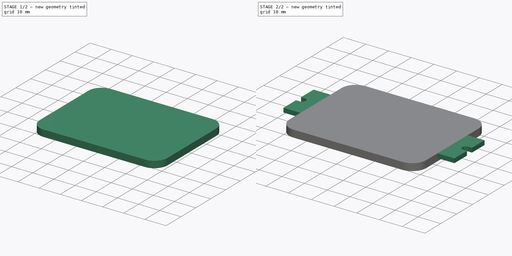
[diagram: build sequence overview — one tinted view per stage of 2, left to right]
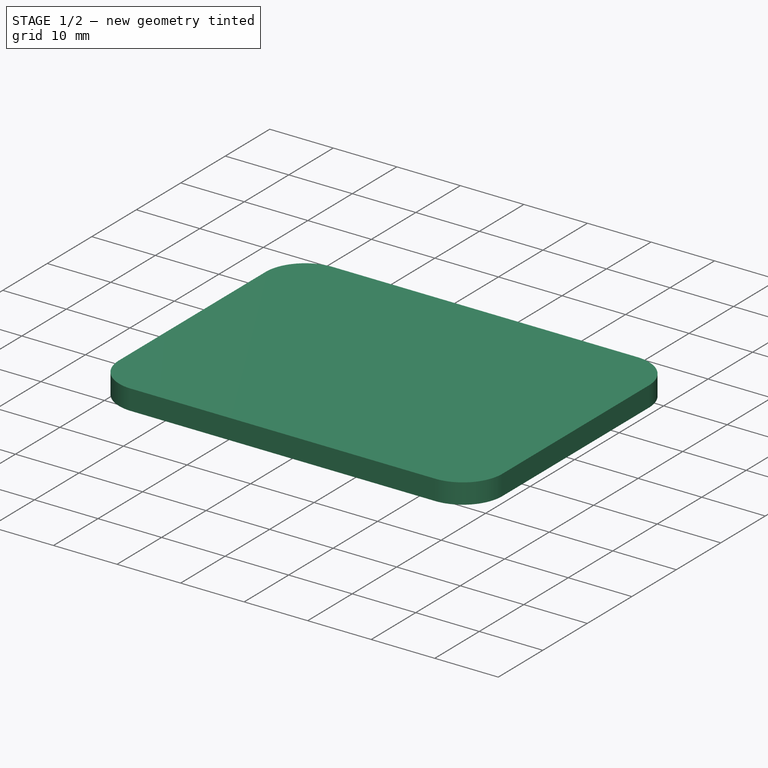
[diagram: stage 1 of 2 — iso view after this stage's code; geometry added in this stage tinted green]
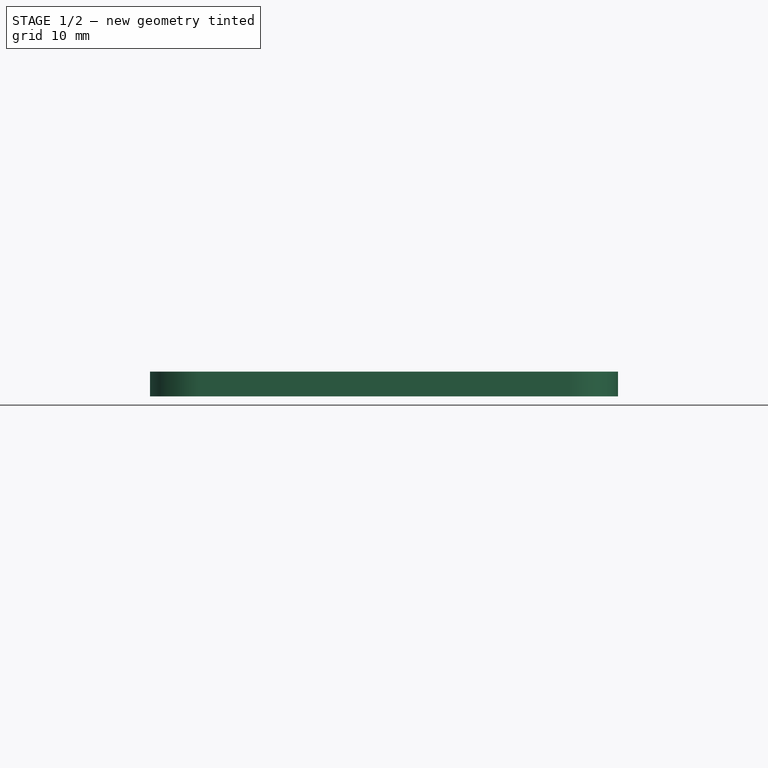
[diagram: stage 1 of 2 — front view after this stage's code; geometry added in this stage tinted green]
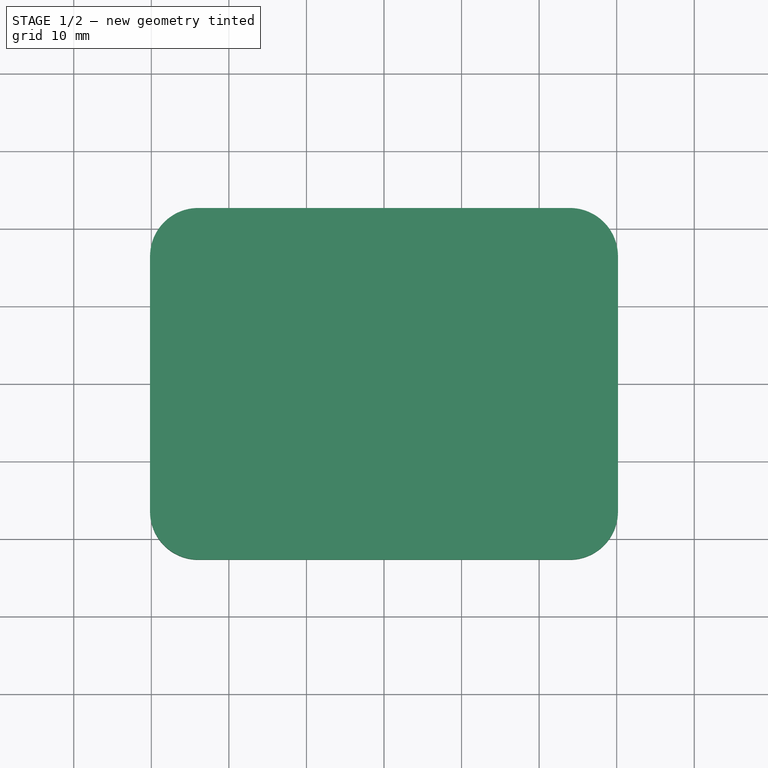
[diagram: stage 1 of 2 — top view after this stage's code; geometry added in this stage tinted green]
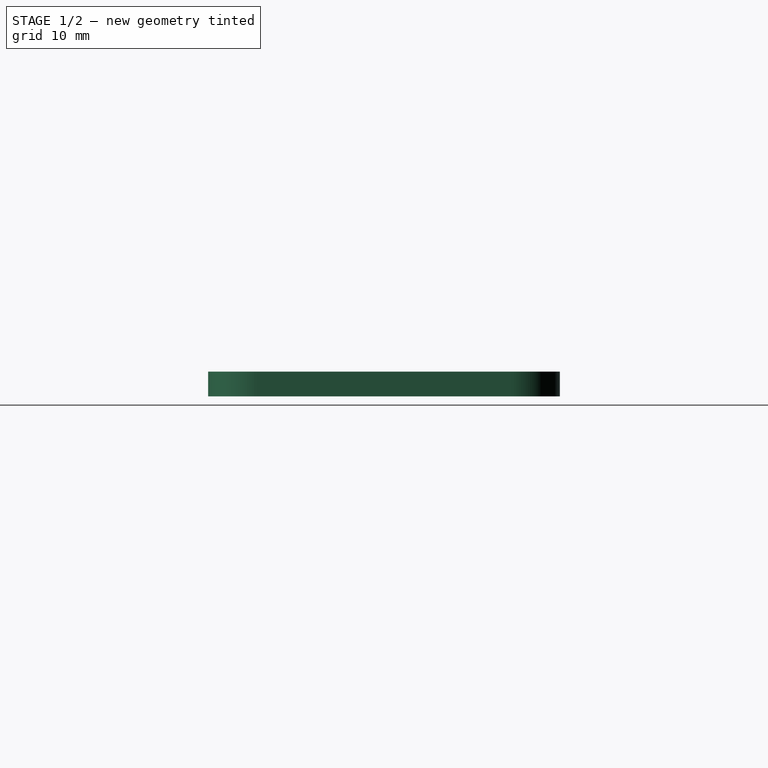
[diagram: stage 1 of 2 — right view after this stage's code; geometry added in this stage tinted green]
FCSTD DOCUMENT  (FreeCAD 0.20R27936 (Git))
Label: Battery Cover
License: All rights reserved
LicenseURL: http://en.wikipedia.org/wiki/All_rights_reserved
objects: Sketcher::SketchObject×2, PartDesign::Pad×2, PartDesign::Body×1
note: 7 computed .brp shape members not serialized (recipe doc carries the construction recipe); baked Part::Feature solids carry a one-line shape summary decoded from their .brp

FEATURE [Sketcher::SketchObject] Sketch
  FullyConstrained = true
  MapMode = 5
  Support = -> [XY_Plane]
  sketch-geometry (9):
    g0: LineSegment StartX=-30.1625 StartY=-16.4465 StartZ=0 EndX=-30.1625 EndY=16.4465 EndZ=0
    g1: LineSegment StartX=-23.9395 StartY=22.6695 StartZ=0 EndX=23.9395 EndY=22.6695 EndZ=0
    g2: LineSegment StartX=30.1625 StartY=16.4465 StartZ=0 EndX=30.1625 EndY=-16.4465 EndZ=0
    g3: LineSegment StartX=23.9395 StartY=-22.6695 StartZ=0 EndX=-23.9395 EndY=-22.6695 EndZ=0
    g4: GeomPoint X=0 Y=0 Z=0
    g5: ArcOfCircle CenterX=23.9395 CenterY=16.4465 CenterZ=0 NormalX=0 NormalY=0 NormalZ=1 AngleXU=0 Radius=6.223 StartAngle=0 EndAngle=1.5708
    g6: ArcOfCircle CenterX=23.9395 CenterY=-16.4465 CenterZ=0 NormalX=0 NormalY=0 NormalZ=1 AngleXU=0 Radius=6.223 StartAngle=4.71239 EndAngle=6.28319
    g7: ArcOfCircle CenterX=-23.9395 CenterY=-16.4465 CenterZ=0 NormalX=0 NormalY=0 NormalZ=1 AngleXU=0 Radius=6.223 StartAngle=3.14159 EndAngle=4.71239
    g8: ArcOfCircle CenterX=-23.9395 CenterY=16.4465 CenterZ=0 NormalX=0 NormalY=0 NormalZ=1 AngleXU=0 Radius=6.223 StartAngle=1.5708 EndAngle=3.14159
  constraints (20):
    c: Horizontal(g1)
    c: Horizontal(g3)
    c: Vertical(g0)
    c: Vertical(g2)
    c: Coincident(g4,g-1)
    c: Tangent(g1,g5) = 1.5708
    c: Tangent(g2,g5) = 1.5708
    c: Tangent(g3,g6) = 1.5708
    c: Tangent(g2,g6) = 1.5708
    c: Tangent(g0,g7) = 1.5708
    c: Tangent(g3,g7) = 1.5708
    c: Tangent(g0,g8) = 1.5708
    c: Tangent(g1,g8) = 1.5708
    c: Distance(g0,g2) = 60.325
    c: Distance(g1,g3) = 45.339
    c: Equal(g8,g7)
    c: Equal(g7,g6)
    c: Equal(g6,g5)
    c: Radius(g5) = 6.223
    c: Symmetric(g5,g7,g4)
FEATURE [PartDesign::Pad] Pad
  Direction = (0,0,1)
  Length = 3.175
  Length2 = 10.0076
  Profile = -> Sketch
  ReferenceAxis = -> Sketch [N_Axis]
  Type = 0
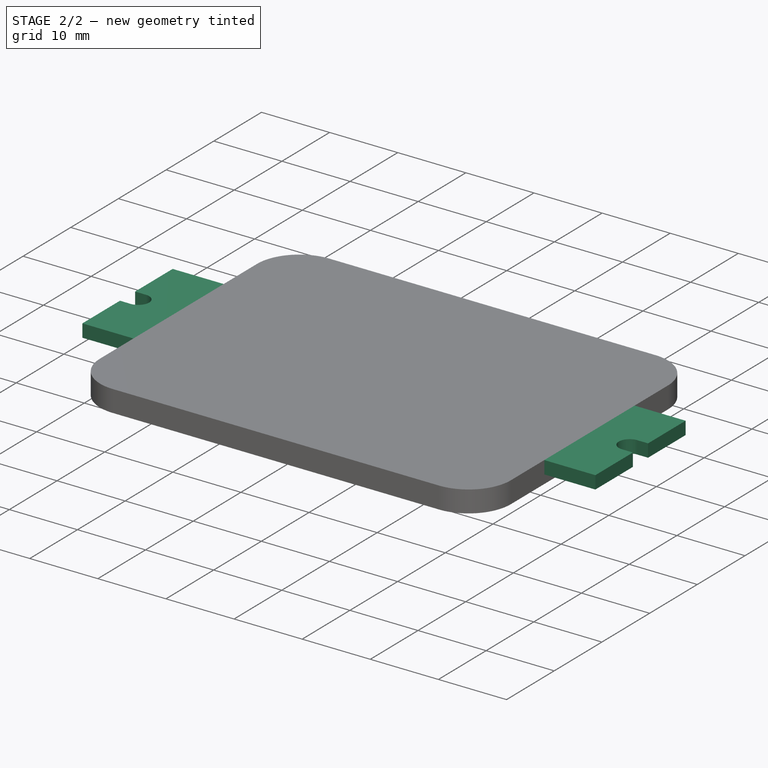
[diagram: stage 2 of 2 — iso view after this stage's code; geometry added in this stage tinted green]
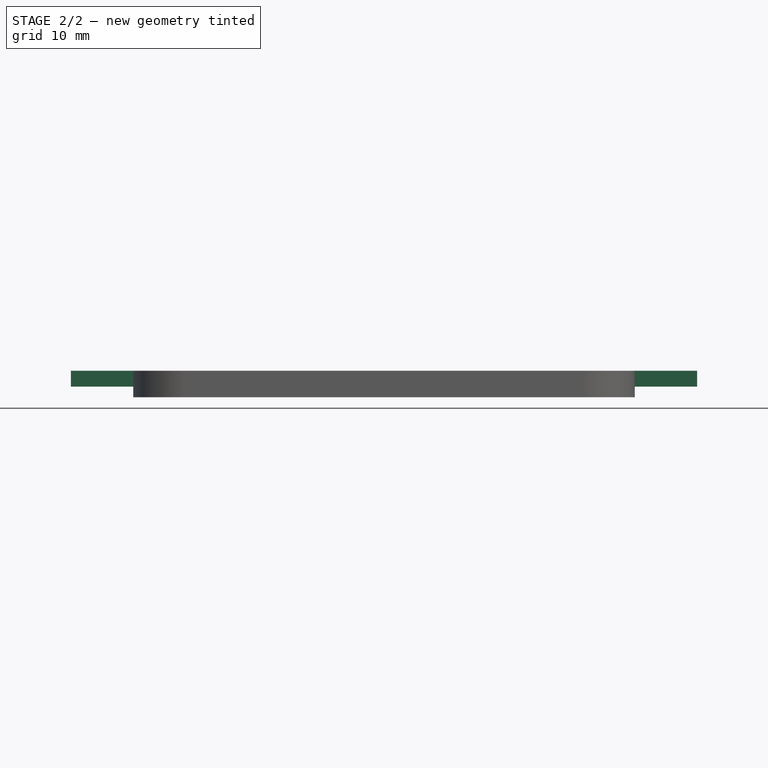
[diagram: stage 2 of 2 — front view after this stage's code; geometry added in this stage tinted green]
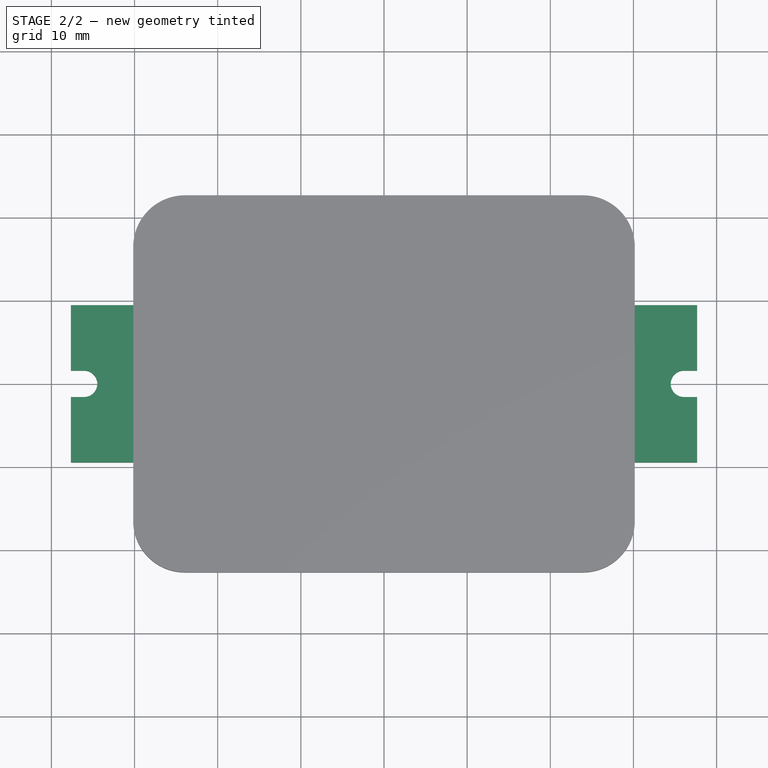
[diagram: stage 2 of 2 — top view after this stage's code; geometry added in this stage tinted green]
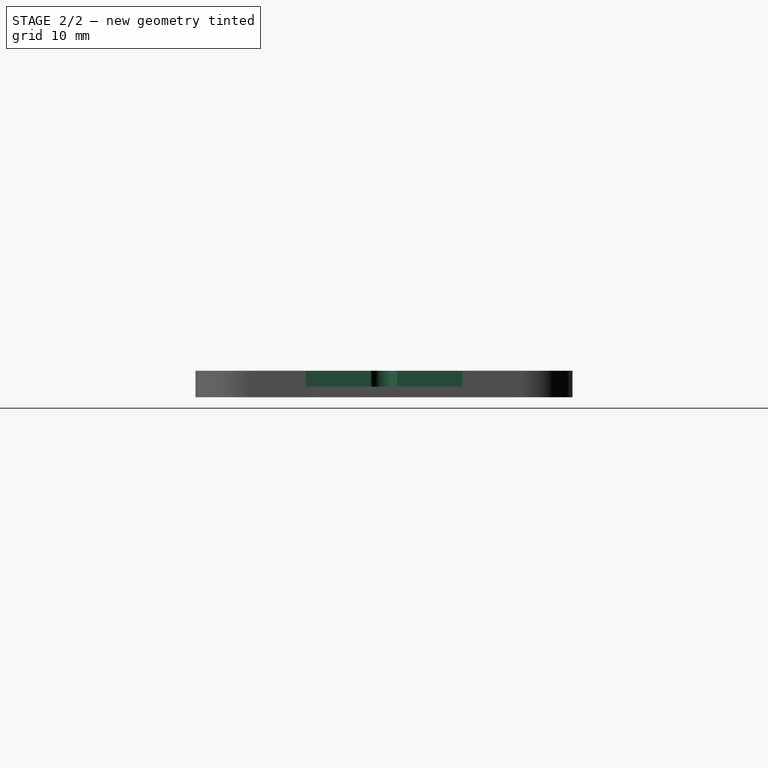
[diagram: stage 2 of 2 — right view after this stage's code; geometry added in this stage tinted green]
FEATURE [Sketcher::SketchObject] Sketch001
  ExternalGeometry = -> [Pad]
  FullyConstrained = true
  MapMode = 5
  Placement = pos=(0,0,3.175) rot=(0,0,1;0rad)
  Support = -> [Pad]
  sketch-geometry (18):
    g0: LineSegment StartX=30.1625 StartY=-9.4615 StartZ=0 EndX=30.1625 EndY=9.4615 EndZ=0
    g1: LineSegment StartX=30.1625 StartY=9.4615 StartZ=0 EndX=37.6555 EndY=9.4615 EndZ=0
    g2: LineSegment StartX=37.6555 StartY=9.4615 StartZ=0 EndX=37.6555 EndY=1.5875 EndZ=0
    g3: LineSegment StartX=37.6555 StartY=-9.4615 StartZ=0 EndX=30.1625 EndY=-9.4615 EndZ=0
    g4: GeomPoint X=33.909 Y=0 Z=0
    g5: LineSegment StartX=-37.6555 StartY=-9.4615 StartZ=0 EndX=-37.6555 EndY=-1.5875 EndZ=0
    g6: LineSegment StartX=-37.6555 StartY=9.4615 StartZ=0 EndX=-30.1625 EndY=9.4615 EndZ=0
    g7: LineSegment StartX=-30.1625 StartY=9.4615 StartZ=0 EndX=-30.1625 EndY=-9.4615 EndZ=0
    g8: LineSegment StartX=-30.1625 StartY=-9.4615 StartZ=0 EndX=-37.6555 EndY=-9.4615 EndZ=0
    g9: GeomPoint X=-33.909 Y=0 Z=0
    g10: ArcOfCircle CenterX=-36.068 CenterY=0 CenterZ=0 NormalX=0 NormalY=0 NormalZ=1 AngleXU=0 Radius=1.5875 StartAngle=4.71239 EndAngle=7.85398
    g11: ArcOfCircle CenterX=36.068 CenterY=0 CenterZ=0 NormalX=0 NormalY=0 NormalZ=1 AngleXU=0 Radius=1.5875 StartAngle=1.5708 EndAngle=4.71239
    g12: LineSegment StartX=-36.068 StartY=1.5875 StartZ=0 EndX=-37.6555 EndY=1.5875 EndZ=0
    g13: LineSegment StartX=-36.068 StartY=-1.5875 StartZ=0 EndX=-37.6555 EndY=-1.5875 EndZ=0
    g14: LineSegment StartX=36.068 StartY=1.5875 StartZ=0 EndX=37.6555 EndY=1.5875 EndZ=0
    g15: LineSegment StartX=36.068 StartY=-1.5875 StartZ=0 EndX=37.6555 EndY=-1.5875 EndZ=0
    g16: LineSegment StartX=37.6555 StartY=-1.5875 StartZ=0 EndX=37.6555 EndY=-9.4615 EndZ=0
    g17: LineSegment StartX=-37.6555 StartY=1.5875 StartZ=0 EndX=-37.6555 EndY=9.4615 EndZ=0
  constraints (44):
    c: Coincident(g0,g1)
    c: Coincident(g1,g2)
    c: Coincident(g16,g3)
    c: Coincident(g3,g0)
    c: Horizontal(g1)
    c: Horizontal(g3)
    c: Vertical(g2)
    c: Symmetric(g1,g0,g4)
    c: PointOnObject(g4,g-1)
    c: Coincident(g17,g6)
    c: Coincident(g6,g7)
    c: Coincident(g7,g8)
    c: Coincident(g8,g5)
    c: Horizontal(g6)
    c: Horizontal(g8)
    c: Vertical(g5)
    c: Symmetric(g6,g5,g9)
    c: PointOnObject(g9,g-1)
    c: Distance(g7) = 18.923
    c: Distance(g6) = 7.493
    c: Equal(g6,g1)
    c: Equal(g0,g7)
    c: Tangent(g7,g-3)
    c: Tangent(g-4,g0)
    c: PointOnObject(g10,g-1)
    c: PointOnObject(g11,g-1)
    c: Horizontal(g12)
    c: Horizontal(g13)
    c: Horizontal(g14)
    c: Horizontal(g15)
    c: Tangent(g15,g11) = -1.5708
    c: Tangent(g14,g11) = 1.5708
    c: Tangent(g12,g10) = -1.5708
    c: Tangent(g13,g10) = 1.5708
    c: Equal(g13,g15)
    c: Coincident(g2,g14)
    c: Coincident(g16,g15)
    c: Coincident(g5,g13)
    c: Coincident(g17,g12)
    c: Equal(g10,g11)
    c: Radius(g11) = 1.5875
    c: Tangent(g16,g2)
    c: Tangent(g5,g17)
    c: Distance(g10,g17) = 1.5875
FEATURE [PartDesign::Pad] Pad001
  BaseFeature = -> Pad
  Direction = (0,0,1)
  Length = 1.905
  Length2 = 10.0076
  Profile = -> Sketch001
  ReferenceAxis = -> Sketch001 [N_Axis]
  Reversed = true
  Type = 0
FEATURE [PartDesign::Body] Body  label="Battery Cover Body"
  Group = -> [Sketch,Pad,Sketch001,Pad001]
  Origin = -> Origin
  Tip = -> Pad001
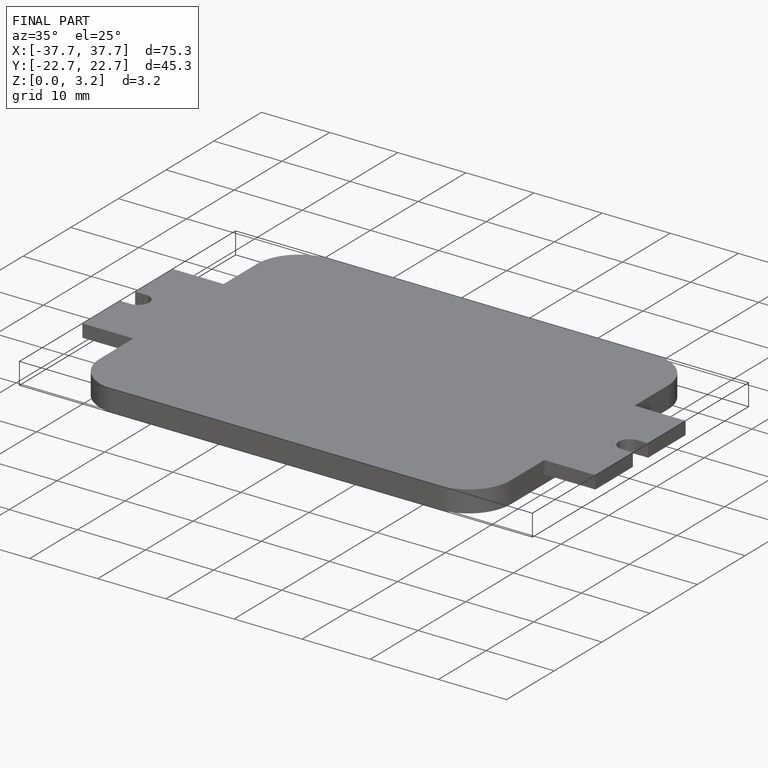
[diagram: finished part — iso view with bounding-box wireframe]
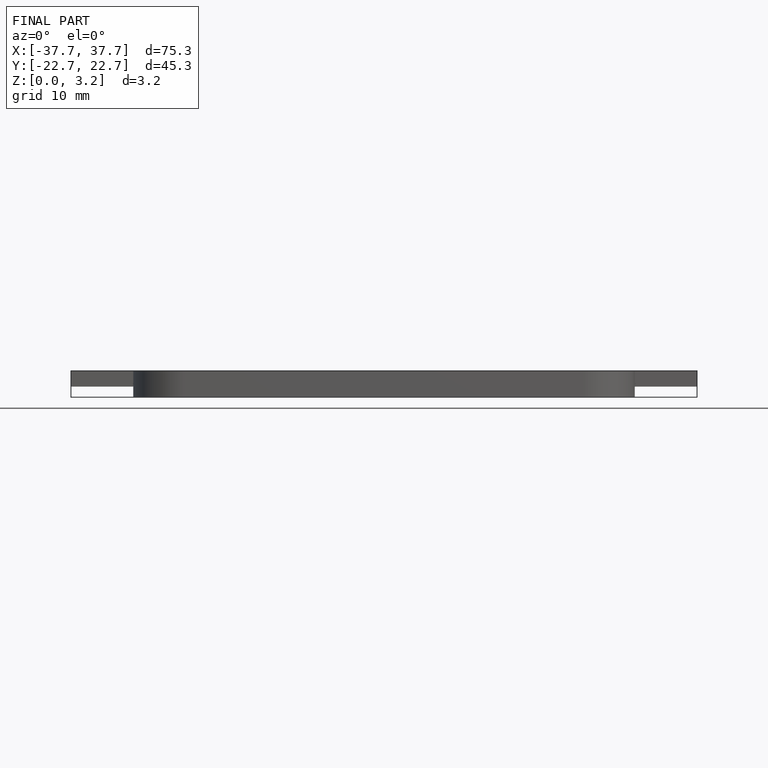
[diagram: finished part — front view with bounding-box wireframe]
